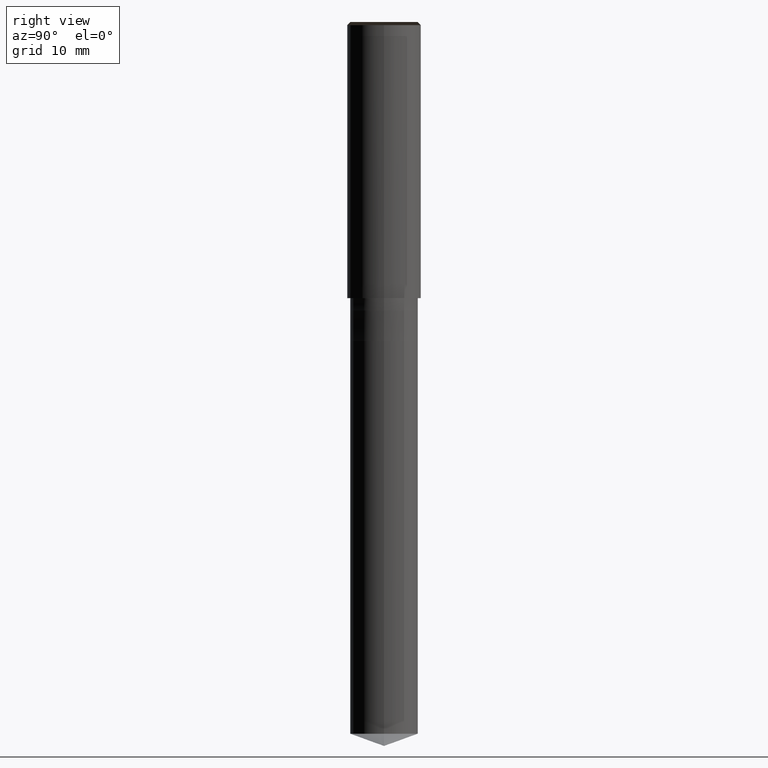
[diagram: clean part render]
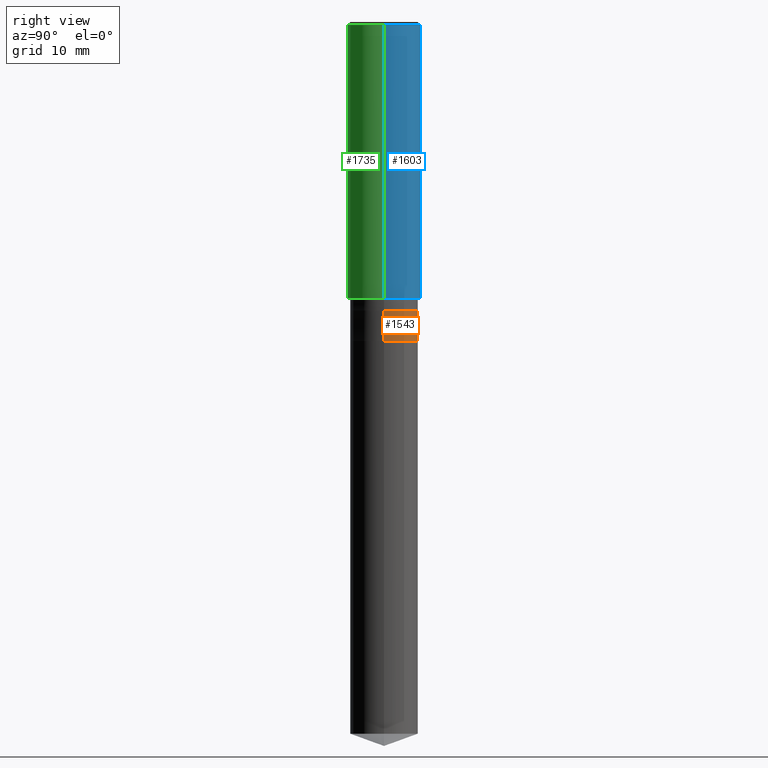
[diagram: same view with three faces highlighted in distinct colors, each labeled with its STEP entity id]
A machine part, right view with three faces highlighted in distinct colors.
Their STEP definitions:

[orange] entity #1543 — the highlighted face is a freeform B-spline surface patch.
#1342=CARTESIAN_POINT('',(5.5,0.0,-7.0));
#1343=CARTESIAN_POINT('',(5.5,5.5,-7.0));
#1344=CARTESIAN_POINT('',(0.0,5.5,-7.0));
#1345=CARTESIAN_POINT('',(-5.5,5.5,-7.0));
#1346=CARTESIAN_POINT('',(-5.5,0.0,-7.0));
#1354=CARTESIAN_POINT('',(5.5,0.0,-2.0));
#1355=CARTESIAN_POINT('',(5.5,5.5,-2.0));
#1356=CARTESIAN_POINT('',(0.0,5.5,-2.0));
#1357=CARTESIAN_POINT('',(-5.5,5.5,-2.0));
#1358=CARTESIAN_POINT('',(-5.5,0.0,-2.0));
#1524=(
BOUNDED_SURFACE()
B_SPLINE_SURFACE(1,2,(
(#1342,#1343,#1344,#1345,#1346),
(#1354,#1355,#1356,#1357,#1358)
), .UNSPECIFIED.,.F.,.F.,.F.)
B_SPLINE_SURFACE_WITH_KNOTS((2,2),(3,2,3),(
0.0,1.0),(
0.0,0.5,1.0), .UNSPECIFIED.)
GEOMETRIC_REPRESENTATION_ITEM()
RATIONAL_B_SPLINE_SURFACE(((1.0,0.707106781187,1.0,0.707106781187,1.0),
(1.0,0.707106781187,1.0,0.707106781187,1.0)
))
REPRESENTATION_ITEM('')
SURFACE()
);
#1525=(
BOUNDED_CURVE()
B_SPLINE_CURVE(2,(#1346,#1345,#1344,#1343,#1342),.UNSPECIFIED.,.F.,.F.)
B_SPLINE_CURVE_WITH_KNOTS((3,2,3),
(0.0,0.5,1.0),.UNSPECIFIED.)
CURVE()
GEOMETRIC_REPRESENTATION_ITEM()
RATIONAL_B_SPLINE_CURVE((1.0,0.707106781187,1.0,0.707106781187,1.0))
REPRESENTATION_ITEM('')
);
#1526=(
BOUNDED_CURVE()
B_SPLINE_CURVE(1,(#1342,#1354),.UNSPECIFIED.,.F.,.F.)
B_SPLINE_CURVE_WITH_KNOTS((2,2),
(0.0,1.0),.UNSPECIFIED.)
CURVE()
GEOMETRIC_REPRESENTATION_ITEM()
RATIONAL_B_SPLINE_CURVE((1.0,1.0))
REPRESENTATION_ITEM('')
);
#1527=(
BOUNDED_CURVE()
B_SPLINE_CURVE(2,(#1354,#1355,#1356,#1357,#1358),.UNSPECIFIED.,.F.,.F.)
B_SPLINE_CURVE_WITH_KNOTS((3,2,3),
(0.0,0.5,1.0),.UNSPECIFIED.)
CURVE()
GEOMETRIC_REPRESENTATION_ITEM()
RATIONAL_B_SPLINE_CURVE((1.0,0.707106781187,1.0,0.707106781187,1.0))
REPRESENTATION_ITEM('')
);
#1528=(
BOUNDED_CURVE()
B_SPLINE_CURVE(1,(#1358,#1346),.UNSPECIFIED.,.F.,.F.)
B_SPLINE_CURVE_WITH_KNOTS((2,2),
(0.0,1.0),.UNSPECIFIED.)
CURVE()
GEOMETRIC_REPRESENTATION_ITEM()
RATIONAL_B_SPLINE_CURVE((1.0,1.0))
REPRESENTATION_ITEM('')
);
#1529=VERTEX_POINT('',#1342);
#1530=VERTEX_POINT('',#1346);
#1531=VERTEX_POINT('',#1354);
#1532=VERTEX_POINT('',#1358);
#1533=EDGE_CURVE('',#1530,#1529,#1525,.T.);
#1534=EDGE_CURVE('',#1529,#1531,#1526,.T.);
#1535=EDGE_CURVE('',#1531,#1532,#1527,.T.);
#1536=EDGE_CURVE('',#1532,#1530,#1528,.T.);
#1537=ORIENTED_EDGE('',*,*,#1533,.T.);
#1538=ORIENTED_EDGE('',*,*,#1534,.T.);
#1539=ORIENTED_EDGE('',*,*,#1535,.T.);
#1540=ORIENTED_EDGE('',*,*,#1536,.T.);
#1541=EDGE_LOOP('',(#1537,#1538,#1539,#1540));
#1542=FACE_OUTER_BOUND('',#1541,.T.);
#1543=ADVANCED_FACE('',(#1542),#1524,.T.);

[blue] entity #1603 — the highlighted face is a freeform B-spline surface patch.
#1364=CARTESIAN_POINT('',(6.0,0.0,0.0));
#1365=CARTESIAN_POINT('',(6.0,6.0,0.0));
#1366=CARTESIAN_POINT('',(0.0,6.0,0.0));
#1367=CARTESIAN_POINT('',(-6.0,6.0,0.0));
#1368=CARTESIAN_POINT('',(-6.0,0.0,0.0));
#1369=CARTESIAN_POINT('',(6.0,0.0,44.5));
#1370=CARTESIAN_POINT('',(6.0,6.0,44.5));
#1371=CARTESIAN_POINT('',(0.0,6.0,44.5));
#1372=CARTESIAN_POINT('',(-6.0,6.0,44.5));
#1373=CARTESIAN_POINT('',(-6.0,0.0,44.5));
#1584=(
BOUNDED_SURFACE()
B_SPLINE_SURFACE(1,2,(
(#1364,#1365,#1366,#1367,#1368),
(#1369,#1370,#1371,#1372,#1373)
), .UNSPECIFIED.,.F.,.F.,.F.)
B_SPLINE_SURFACE_WITH_KNOTS((2,2),(3,2,3),(
0.0,1.0),(
0.0,0.5,1.0), .UNSPECIFIED.)
GEOMETRIC_REPRESENTATION_ITEM()
RATIONAL_B_SPLINE_SURFACE(((1.0,0.707106781187,1.0,0.707106781187,1.0),
(1.0,0.707106781187,1.0,0.707106781187,1.0)
))
REPRESENTATION_ITEM('')
SURFACE()
);
#1585=(
BOUNDED_CURVE()
B_SPLINE_CURVE(2,(#1368,#1367,#1366,#1365,#1364),.UNSPECIFIED.,.F.,.F.)
B_SPLINE_CURVE_WITH_KNOTS((3,2,3),
(0.0,0.5,1.0),.UNSPECIFIED.)
CURVE()
GEOMETRIC_REPRESENTATION_ITEM()
RATIONAL_B_SPLINE_CURVE((1.0,0.707106781187,1.0,0.707106781187,1.0))
REPRESENTATION_ITEM('')
);
#1586=(
BOUNDED_CURVE()
B_SPLINE_CURVE(1,(#1364,#1369),.UNSPECIFIED.,.F.,.F.)
B_SPLINE_CURVE_WITH_KNOTS((2,2),
(0.0,1.0),.UNSPECIFIED.)
CURVE()
GEOMETRIC_REPRESENTATION_ITEM()
RATIONAL_B_SPLINE_CURVE((1.0,1.0))
REPRESENTATION_ITEM('')
);
#1587=(
BOUNDED_CURVE()
B_SPLINE_CURVE(2,(#1369,#1370,#1371,#1372,#1373),.UNSPECIFIED.,.F.,.F.)
B_SPLINE_CURVE_WITH_KNOTS((3,2,3),
(0.0,0.5,1.0),.UNSPECIFIED.)
CURVE()
GEOMETRIC_REPRESENTATION_ITEM()
RATIONAL_B_SPLINE_CURVE((1.0,0.707106781187,1.0,0.707106781187,1.0))
REPRESENTATION_ITEM('')
);
#1588=(
BOUNDED_CURVE()
B_SPLINE_CURVE(1,(#1373,#1368),.UNSPECIFIED.,.F.,.F.)
B_SPLINE_CURVE_WITH_KNOTS((2,2),
(0.0,1.0),.UNSPECIFIED.)
CURVE()
GEOMETRIC_REPRESENTATION_ITEM()
RATIONAL_B_SPLINE_CURVE((1.0,1.0))
REPRESENTATION_ITEM('')
);
#1589=VERTEX_POINT('',#1364);
#1590=VERTEX_POINT('',#1368);
#1591=VERTEX_POINT('',#1369);
#1592=VERTEX_POINT('',#1373);
#1593=EDGE_CURVE('',#1590,#1589,#1585,.T.);
#1594=EDGE_CURVE('',#1589,#1591,#1586,.T.);
#1595=EDGE_CURVE('',#1591,#1592,#1587,.T.);
#1596=EDGE_CURVE('',#1592,#1590,#1588,.T.);
#1597=ORIENTED_EDGE('',*,*,#1593,.T.);
#1598=ORIENTED_EDGE('',*,*,#1594,.T.);
#1599=ORIENTED_EDGE('',*,*,#1595,.T.);
#1600=ORIENTED_EDGE('',*,*,#1596,.T.);
#1601=EDGE_LOOP('',(#1597,#1598,#1599,#1600));
#1602=FACE_OUTER_BOUND('',#1601,.T.);
#1603=ADVANCED_FACE('',(#1602),#1584,.T.);

[green] entity #1735 — the highlighted face is a freeform B-spline surface patch.
#1364=CARTESIAN_POINT('',(6.0,0.0,0.0));
#1368=CARTESIAN_POINT('',(-6.0,0.0,0.0));
#1369=CARTESIAN_POINT('',(6.0,0.0,44.5));
#1373=CARTESIAN_POINT('',(-6.0,0.0,44.5));
#1386=CARTESIAN_POINT('',(-6.0,-6.0,0.0));
#1387=CARTESIAN_POINT('',(0.0,-6.0,0.0));
#1388=CARTESIAN_POINT('',(6.0,-6.0,0.0));
#1389=CARTESIAN_POINT('',(-6.0,-6.0,44.5));
#1390=CARTESIAN_POINT('',(0.0,-6.0,44.5));
#1391=CARTESIAN_POINT('',(6.0,-6.0,44.5));
#1716=(
BOUNDED_SURFACE()
B_SPLINE_SURFACE(1,2,(
(#1368,#1386,#1387,#1388,#1364),
(#1373,#1389,#1390,#1391,#1369)
), .UNSPECIFIED.,.F.,.F.,.F.)
B_SPLINE_SURFACE_WITH_KNOTS((2,2),(3,2,3),(
0.0,1.0),(
0.0,0.5,1.0), .UNSPECIFIED.)
GEOMETRIC_REPRESENTATION_ITEM()
RATIONAL_B_SPLINE_SURFACE(((1.0,0.707106781187,1.0,0.707106781187,1.0),
(1.0,0.707106781187,1.0,0.707106781187,1.0)
))
REPRESENTATION_ITEM('')
SURFACE()
);
#1717=(
BOUNDED_CURVE()
B_SPLINE_CURVE(2,(#1364,#1388,#1387,#1386,#1368),.UNSPECIFIED.,.F.,.F.)
B_SPLINE_CURVE_WITH_KNOTS((3,2,3),
(0.0,0.5,1.0),.UNSPECIFIED.)
CURVE()
GEOMETRIC_REPRESENTATION_ITEM()
RATIONAL_B_SPLINE_CURVE((1.0,0.707106781187,1.0,0.707106781187,1.0))
REPRESENTATION_ITEM('')
);
#1718=(
BOUNDED_CURVE()
B_SPLINE_CURVE(1,(#1368,#1373),.UNSPECIFIED.,.F.,.F.)
B_SPLINE_CURVE_WITH_KNOTS((2,2),
(0.0,1.0),.UNSPECIFIED.)
CURVE()
GEOMETRIC_REPRESENTATION_ITEM()
RATIONAL_B_SPLINE_CURVE((1.0,1.0))
REPRESENTATION_ITEM('')
);
#1719=(
BOUNDED_CURVE()
B_SPLINE_CURVE(2,(#1373,#1389,#1390,#1391,#1369),.UNSPECIFIED.,.F.,.F.)
B_SPLINE_CURVE_WITH_KNOTS((3,2,3),
(0.0,0.5,1.0),.UNSPECIFIED.)
CURVE()
GEOMETRIC_REPRESENTATION_ITEM()
RATIONAL_B_SPLINE_CURVE((1.0,0.707106781187,1.0,0.707106781187,1.0))
REPRESENTATION_ITEM('')
);
#1720=(
BOUNDED_CURVE()
B_SPLINE_CURVE(1,(#1369,#1364),.UNSPECIFIED.,.F.,.F.)
B_SPLINE_CURVE_WITH_KNOTS((2,2),
(0.0,1.0),.UNSPECIFIED.)
CURVE()
GEOMETRIC_REPRESENTATION_ITEM()
RATIONAL_B_SPLINE_CURVE((1.0,1.0))
REPRESENTATION_ITEM('')
);
#1721=VERTEX_POINT('',#1364);
#1722=VERTEX_POINT('',#1368);
#1723=VERTEX_POINT('',#1369);
#1724=VERTEX_POINT('',#1373);
#1725=EDGE_CURVE('',#1721,#1722,#1717,.T.);
#1726=EDGE_CURVE('',#1722,#1724,#1718,.T.);
#1727=EDGE_CURVE('',#1724,#1723,#1719,.T.);
#1728=EDGE_CURVE('',#1723,#1721,#1720,.T.);
#1729=ORIENTED_EDGE('',*,*,#1725,.T.);
#1730=ORIENTED_EDGE('',*,*,#1726,.T.);
#1731=ORIENTED_EDGE('',*,*,#1727,.T.);
#1732=ORIENTED_EDGE('',*,*,#1728,.T.);
#1733=EDGE_LOOP('',(#1729,#1730,#1731,#1732));
#1734=FACE_OUTER_BOUND('',#1733,.T.);
#1735=ADVANCED_FACE('',(#1734),#1716,.T.);